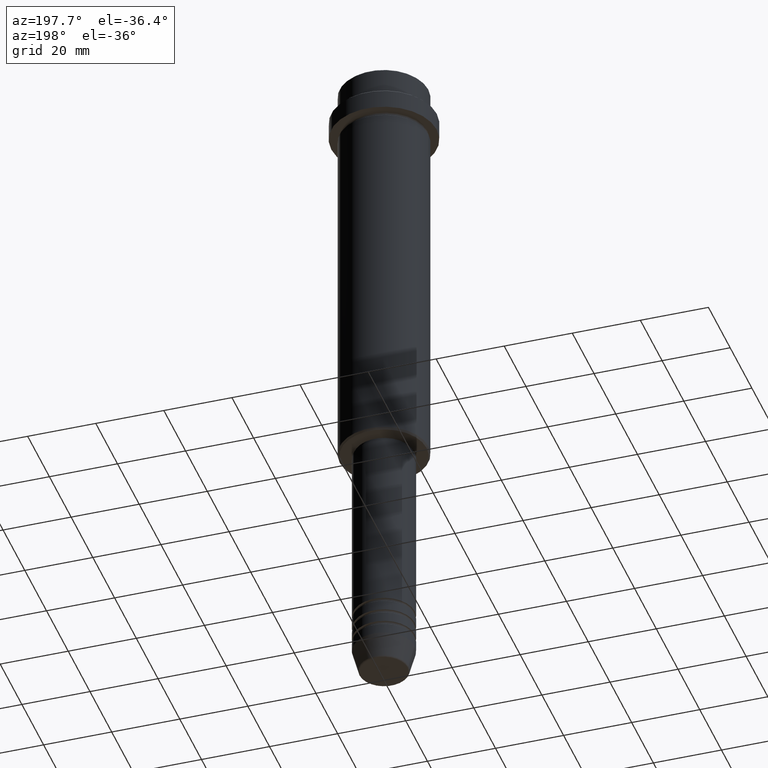
[diagram: clean part render]
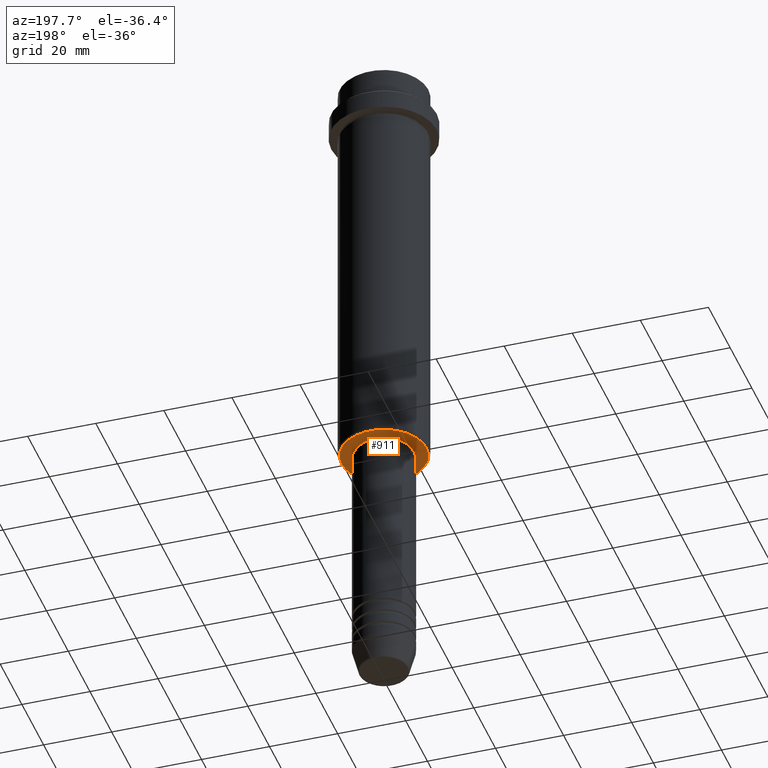
[diagram: same view with one face highlighted and labeled with its STEP entity id]
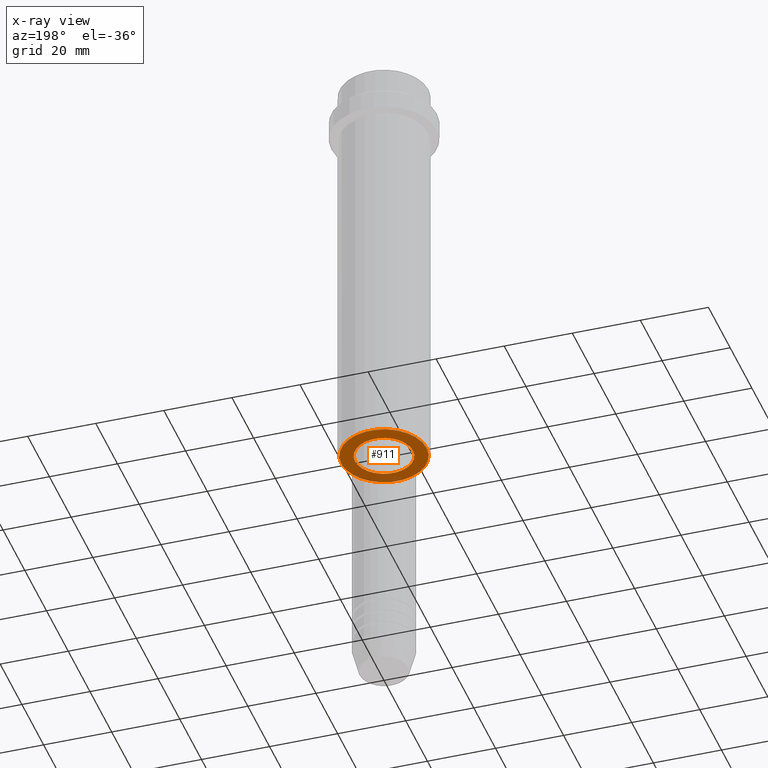
[diagram: x-ray of the same camera — body ghosted, the highlighted face saturated]
A machine part, auxiliary view. The second image highlights one B-rep face of the part: STEP entity #911.
The next image is the same camera in x-ray: the body ghosted, the highlighted face saturated — about 10% of this face is hidden behind the body in this view.
In plain terms, the highlighted planar face has unit normal (0, 0, -1).
Its self-contained STEP definition (entity closure, byte-faithful):
#28 = CIRCLE ( 'NONE', #1284, 8.499999999999994671 ) ;
#53 = FACE_BOUND ( 'NONE', #543, .T. ) ;
#59 = DIRECTION ( 'NONE',  ( -1.000000000000000000, 0.000000000000000000, -0.000000000000000000 ) ) ;
#124 = ORIENTED_EDGE ( 'NONE', *, *, #294, .T. ) ;
#125 = CARTESIAN_POINT ( 'NONE',  ( 8.499999999999994671, 0.000000000000000000, -125.0000000000000284 ) ) ;
#138 = EDGE_CURVE ( 'NONE', #346, #554, #986, .T. ) ;
#149 = DIRECTION ( 'NONE',  ( 1.000000000000000000, 0.000000000000000000, 0.000000000000000000 ) ) ;
#185 = CARTESIAN_POINT ( 'NONE',  ( 12.49999999999998401, 0.000000000000000000, -125.0000000000000284 ) ) ;
#189 = ORIENTED_EDGE ( 'NONE', *, *, #138, .T. ) ;
#204 = EDGE_CURVE ( 'NONE', #1189, #755, #28, .T. ) ;
#254 = DIRECTION ( 'NONE',  ( 1.000000000000000000, 0.000000000000000000, 0.000000000000000000 ) ) ;
#294 = EDGE_CURVE ( 'NONE', #755, #1189, #414, .T. ) ;
#299 = DIRECTION ( 'NONE',  ( -0.000000000000000000, -0.000000000000000000, 1.000000000000000000 ) ) ;
#311 = FACE_OUTER_BOUND ( 'NONE', #1252, .T. ) ;
#346 = VERTEX_POINT ( 'NONE', #1140 ) ;
#414 = CIRCLE ( 'NONE', #1264, 8.499999999999994671 ) ;
#450 = DIRECTION ( 'NONE',  ( -1.000000000000000000, 0.000000000000000000, 0.000000000000000000 ) ) ;
#461 = AXIS2_PLACEMENT_3D ( 'NONE', #1121, #479, #450 ) ;
#479 = DIRECTION ( 'NONE',  ( 0.000000000000000000, 0.000000000000000000, -1.000000000000000000 ) ) ;
#507 = DIRECTION ( 'NONE',  ( 0.000000000000000000, 0.000000000000000000, -1.000000000000000000 ) ) ;
#543 = EDGE_LOOP ( 'NONE', ( #124, #854 ) ) ;
#554 = VERTEX_POINT ( 'NONE', #185 ) ;
#707 = AXIS2_PLACEMENT_3D ( 'NONE', #867, #928, #971 ) ;
#741 = CARTESIAN_POINT ( 'NONE',  ( 0.000000000000000000, 0.000000000000000000, -125.0000000000000284 ) ) ;
#755 = VERTEX_POINT ( 'NONE', #125 ) ;
#802 = CIRCLE ( 'NONE', #707, 12.49999999999998401 ) ;
#854 = ORIENTED_EDGE ( 'NONE', *, *, #204, .T. ) ;
#867 = CARTESIAN_POINT ( 'NONE',  ( 0.000000000000000000, 0.000000000000000000, -125.0000000000000284 ) ) ;
#891 = EDGE_CURVE ( 'NONE', #554, #346, #802, .T. ) ;
#897 = AXIS2_PLACEMENT_3D ( 'NONE', #936, #507, #59 ) ;
#908 = CARTESIAN_POINT ( 'NONE',  ( 0.000000000000000000, 0.000000000000000000, -125.0000000000000284 ) ) ;
#911 = ADVANCED_FACE ( 'NONE', ( #311, #53 ), #1268, .T. ) ;
#928 = DIRECTION ( 'NONE',  ( 0.000000000000000000, 0.000000000000000000, -1.000000000000000000 ) ) ;
#936 = CARTESIAN_POINT ( 'NONE',  ( 0.000000000000000000, 13.00000000000000000, -125.0000000000000284 ) ) ;
#971 = DIRECTION ( 'NONE',  ( -1.000000000000000000, 0.000000000000000000, 0.000000000000000000 ) ) ;
#986 = CIRCLE ( 'NONE', #461, 12.49999999999998401 ) ;
#1044 = CARTESIAN_POINT ( 'NONE',  ( -8.499999999999994671, 1.040949779275249745E-15, -125.0000000000000284 ) ) ;
#1121 = CARTESIAN_POINT ( 'NONE',  ( 0.000000000000000000, 0.000000000000000000, -125.0000000000000284 ) ) ;
#1140 = CARTESIAN_POINT ( 'NONE',  ( -12.49999999999998401, 1.561424668912874125E-15, -125.0000000000000284 ) ) ;
#1189 = VERTEX_POINT ( 'NONE', #1044 ) ;
#1240 = DIRECTION ( 'NONE',  ( -0.000000000000000000, -0.000000000000000000, 1.000000000000000000 ) ) ;
#1251 = ORIENTED_EDGE ( 'NONE', *, *, #891, .T. ) ;
#1252 = EDGE_LOOP ( 'NONE', ( #1251, #189 ) ) ;
#1264 = AXIS2_PLACEMENT_3D ( 'NONE', #741, #299, #149 ) ;
#1268 = PLANE ( 'NONE',  #897 ) ;
#1284 = AXIS2_PLACEMENT_3D ( 'NONE', #908, #1240, #254 ) ;